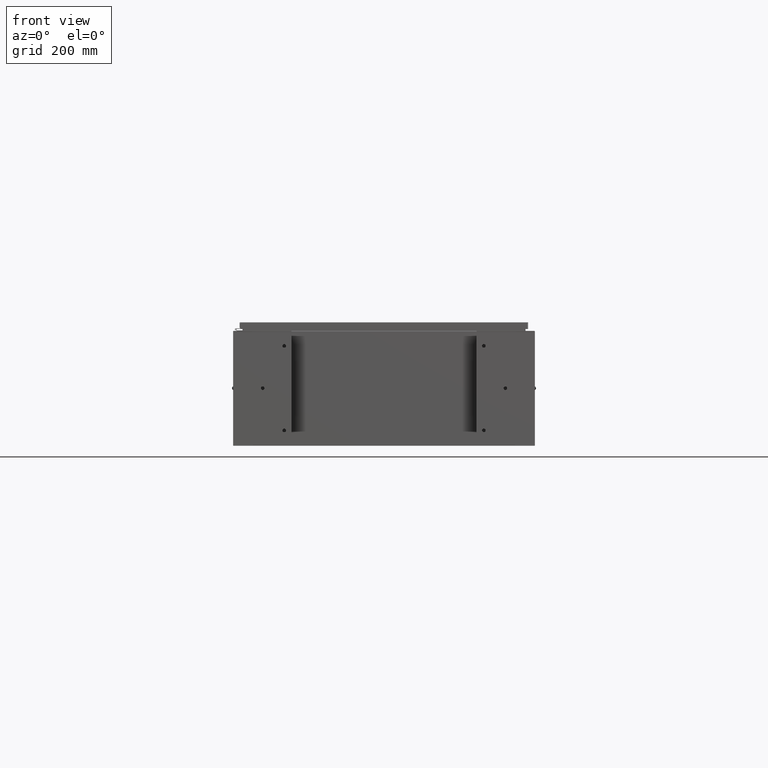
[diagram: clean part render]
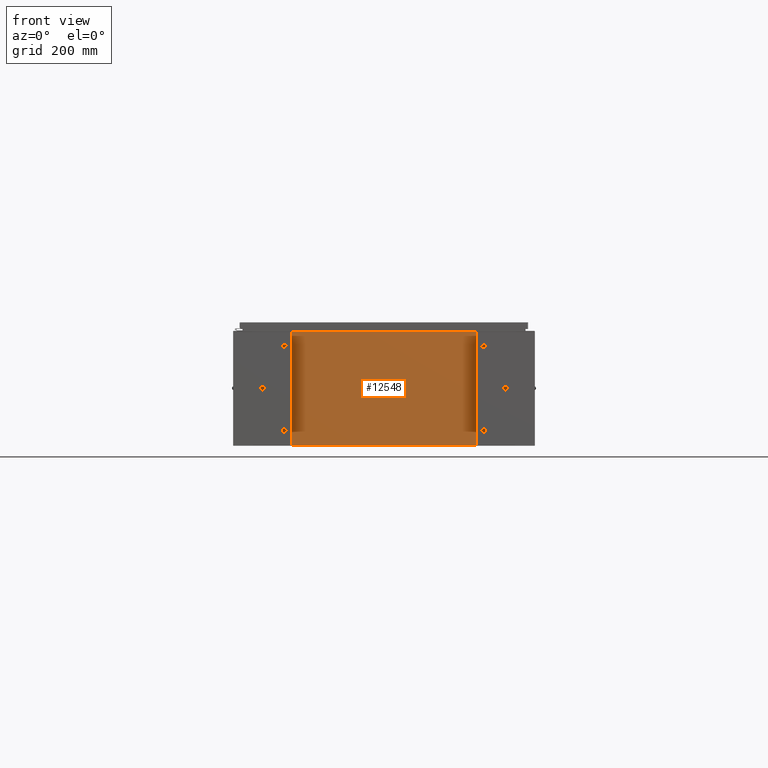
[diagram: same view with one face highlighted and labeled with its STEP entity id]
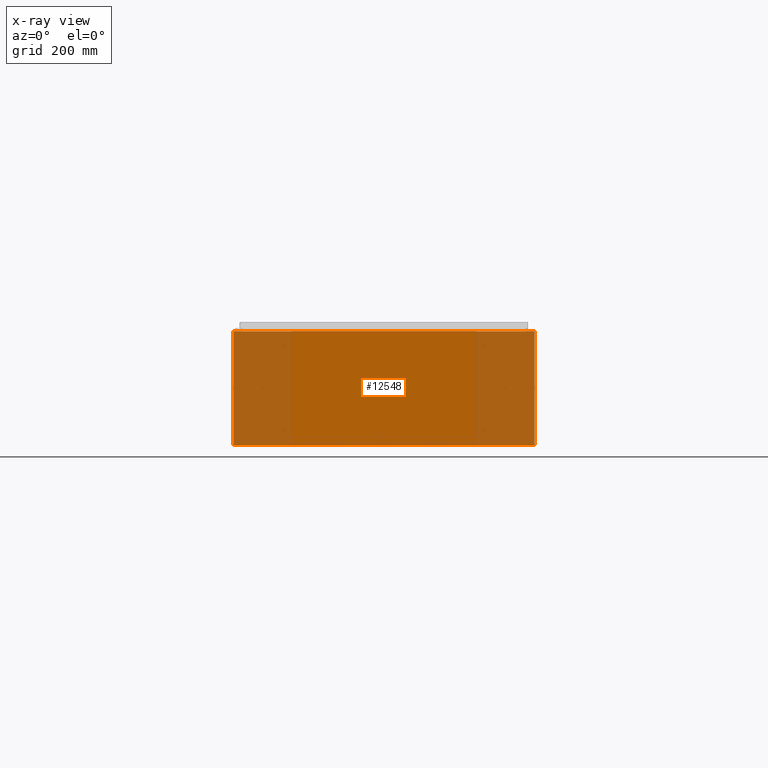
[diagram: x-ray of the same camera — body ghosted, the highlighted face saturated]
A machine part, front view. The second image highlights one B-rep face of the part: STEP entity #12548.
The next image is the same camera in x-ray: the body ghosted, the highlighted face saturated — about 38% of this face is hidden behind the body in this view.
In plain terms, the highlighted planar face has unit normal (-0, 1, -0).
Its self-contained STEP definition (entity closure, byte-faithful):
#486 = VERTEX_POINT ( 'NONE', #44316 ) ;
#908 = EDGE_CURVE ( 'NONE', #27316, #55080, #16920, .T. ) ;
#1716 = CARTESIAN_POINT ( 'NONE',  ( -20.92530000000000400, 0.0000000000000000000, 7.925300000000001800 ) ) ;
#1980 = CARTESIAN_POINT ( 'NONE',  ( -19.63720000000000400, -0.0000000000000000000, 0.0000000000000000000 ) ) ;
#3445 = DIRECTION ( 'NONE',  ( 0.0000000000000000000, 0.0000000000000000000, 1.000000000000000000 ) ) ;
#3631 = VECTOR ( 'NONE', #14404, 39.37007874015748100 ) ;
#4029 = ORIENTED_EDGE ( 'NONE', *, *, #34767, .F. ) ;
#5207 = CARTESIAN_POINT ( 'NONE',  ( 19.65587500000000500, 0.0000000000000000000, 7.874950000000001900 ) ) ;
#5981 = VERTEX_POINT ( 'NONE', #47097 ) ;
#6625 = ORIENTED_EDGE ( 'NONE', *, *, #908, .F. ) ;
#10515 = VERTEX_POINT ( 'NONE', #37493 ) ;
#10577 = CARTESIAN_POINT ( 'NONE',  ( -20.92530000000000400, 0.0000000000000000000, 7.925300000000001800 ) ) ;
#12548 = ADVANCED_FACE ( 'NONE', ( #39810 ), #17777, .F. ) ;
#13855 = CARTESIAN_POINT ( 'NONE',  ( -19.65587500000000500, 0.0000000000000000000, 7.874950000000001900 ) ) ;
#14272 = DIRECTION ( 'NONE',  ( -0.0000000000000000000, -0.0000000000000000000, 1.000000000000000000 ) ) ;
#14283 = CARTESIAN_POINT ( 'NONE',  ( -19.63720000000000400, -0.0000000000000000000, 7.874950000000001900 ) ) ;
#14404 = DIRECTION ( 'NONE',  ( -1.000000000000000000, -0.0000000000000000000, -0.0000000000000000000 ) ) ;
#14795 = ORIENTED_EDGE ( 'NONE', *, *, #54468, .T. ) ;
#14874 = CARTESIAN_POINT ( 'NONE',  ( 19.67455000000034500, 0.0000000000000000000, 8.539881619662225600E-013 ) ) ;
#15259 = EDGE_CURVE ( 'NONE', #59987, #10515, #66054, .T. ) ;
#16067 = ORIENTED_EDGE ( 'NONE', *, *, #66864, .F. ) ;
#16421 = VECTOR ( 'NONE', #47747, 39.37007874015748100 ) ;
#16920 = CIRCLE ( 'NONE', #61951, 0.01867499999999949400 ) ;
#16942 = VECTOR ( 'NONE', #70055, 39.37007874015748100 ) ;
#17533 = VERTEX_POINT ( 'NONE', #38111 ) ;
#17669 = EDGE_CURVE ( 'NONE', #5981, #70222, #18638, .T. ) ;
#17760 = ORIENTED_EDGE ( 'NONE', *, *, #50952, .T. ) ;
#17777 = PLANE ( 'NONE',  #46016 ) ;
#18638 = LINE ( 'NONE', #50153, #16942 ) ;
#18989 = CARTESIAN_POINT ( 'NONE',  ( 19.63720000000000400, 0.0000000000000000000, 7.874950000000001900 ) ) ;
#19323 = DIRECTION ( 'NONE',  ( 0.0000000000000000000, 0.0000000000000000000, -1.000000000000000000 ) ) ;
#19700 = VECTOR ( 'NONE', #3445, 39.37007874015748100 ) ;
#19897 = LINE ( 'NONE', #41637, #3631 ) ;
#20248 = CARTESIAN_POINT ( 'NONE',  ( -19.67455000000000400, 0.0000000000000000000, 7.874950000000001900 ) ) ;
#22291 = ORIENTED_EDGE ( 'NONE', *, *, #70606, .F. ) ;
#23552 = DIRECTION ( 'NONE',  ( 0.0000000000000000000, -1.000000000000000000, 0.0000000000000000000 ) ) ;
#23997 = EDGE_CURVE ( 'NONE', #39673, #17533, #40269, .T. ) ;
#24184 = VERTEX_POINT ( 'NONE', #14283 ) ;
#24862 = CARTESIAN_POINT ( 'NONE',  ( 19.63720000000000400, 0.0000000000000000000, 7.912300000000001900 ) ) ;
#25652 = VECTOR ( 'NONE', #53927, 39.37007874015748100 ) ;
#26162 = CARTESIAN_POINT ( 'NONE',  ( 19.67455000000000400, 0.0000000000000000000, 7.874950000000001900 ) ) ;
#26261 = DIRECTION ( 'NONE',  ( 0.0000000000000000000, 0.0000000000000000000, -1.000000000000000000 ) ) ;
#27316 = VERTEX_POINT ( 'NONE', #26162 ) ;
#27318 = EDGE_LOOP ( 'NONE', ( #68927, #37035, #4029, #48041, #16067, #6625, #22291, #40270, #14795, #50178, #17760, #68169 ) ) ;
#28715 = DIRECTION ( 'NONE',  ( 0.0000000000000000000, 0.0000000000000000000, 1.000000000000000000 ) ) ;
#29892 = DIRECTION ( 'NONE',  ( 1.000000000000000000, 0.0000000000000000000, -2.611047864225854000E-017 ) ) ;
#30048 = LINE ( 'NONE', #1980, #70431 ) ;
#30115 = CIRCLE ( 'NONE', #57921, 0.01867499999999949400 ) ;
#30511 = CARTESIAN_POINT ( 'NONE',  ( -20.92530000000000400, 0.0000000000000000000, 7.925300000000001800 ) ) ;
#30934 = LINE ( 'NONE', #14874, #16421 ) ;
#31259 = LINE ( 'NONE', #34454, #44045 ) ;
#32115 = VECTOR ( 'NONE', #14272, 39.37007874015748100 ) ;
#33017 = VERTEX_POINT ( 'NONE', #70357 ) ;
#33479 = EDGE_CURVE ( 'NONE', #33017, #486, #19897, .T. ) ;
#33866 = LINE ( 'NONE', #30511, #32115 ) ;
#34256 = EDGE_CURVE ( 'NONE', #24184, #59987, #30115, .T. ) ;
#34454 = CARTESIAN_POINT ( 'NONE',  ( 20.92530000000000400, 0.0000000000000000000, 7.925300000000000900 ) ) ;
#34767 = EDGE_CURVE ( 'NONE', #5981, #24184, #30048, .T. ) ;
#34857 = DIRECTION ( 'NONE',  ( 0.0000000000000000000, 0.0000000000000000000, -1.000000000000000000 ) ) ;
#35209 = LINE ( 'NONE', #57074, #47908 ) ;
#37035 = ORIENTED_EDGE ( 'NONE', *, *, #34256, .F. ) ;
#37493 = CARTESIAN_POINT ( 'NONE',  ( -19.67455000000000400, 0.0000000000000000000, 7.925300000000001800 ) ) ;
#38111 = CARTESIAN_POINT ( 'NONE',  ( 20.92530000000000400, 0.0000000000000000000, 7.925300000000000900 ) ) ;
#39673 = VERTEX_POINT ( 'NONE', #45332 ) ;
#39810 = FACE_OUTER_BOUND ( 'NONE', #27318, .T. ) ;
#40269 = LINE ( 'NONE', #10577, #25652 ) ;
#40270 = ORIENTED_EDGE ( 'NONE', *, *, #23997, .T. ) ;
#41637 = CARTESIAN_POINT ( 'NONE',  ( -20.92530000000000400, 0.0000000000000000000, -7.925299999999997300 ) ) ;
#43846 = DIRECTION ( 'NONE',  ( 0.0000000000000000000, -0.0000000000000000000, -1.000000000000000000 ) ) ;
#44045 = VECTOR ( 'NONE', #50816, 39.37007874015748100 ) ;
#44316 = CARTESIAN_POINT ( 'NONE',  ( -20.92530000000000400, 0.0000000000000000000, -7.925299999999997300 ) ) ;
#45332 = CARTESIAN_POINT ( 'NONE',  ( 19.67454999999998200, 0.0000000000000000000, 7.925300000000000900 ) ) ;
#46016 = AXIS2_PLACEMENT_3D ( 'NONE', #61077, #23552, #43846 ) ;
#46715 = DIRECTION ( 'NONE',  ( -0.0000000000000000000, 1.000000000000000000, -0.0000000000000000000 ) ) ;
#47097 = CARTESIAN_POINT ( 'NONE',  ( -19.63720000000000400, -7.171100983368691200E-016, 7.912300000000001900 ) ) ;
#47747 = DIRECTION ( 'NONE',  ( 4.340572780400098900E-014, 0.0000000000000000000, -1.000000000000000000 ) ) ;
#47908 = VECTOR ( 'NONE', #29892, 39.37007874015748100 ) ;
#48041 = ORIENTED_EDGE ( 'NONE', *, *, #17669, .T. ) ;
#48751 = LINE ( 'NONE', #69193, #19700 ) ;
#50153 = CARTESIAN_POINT ( 'NONE',  ( -19.63720000000000400, -7.171100983368691200E-016, 7.912300000000001900 ) ) ;
#50178 = ORIENTED_EDGE ( 'NONE', *, *, #33479, .T. ) ;
#50816 = DIRECTION ( 'NONE',  ( 0.0000000000000000000, 0.0000000000000000000, -1.000000000000000000 ) ) ;
#50952 = EDGE_CURVE ( 'NONE', #486, #51840, #33866, .T. ) ;
#51840 = VERTEX_POINT ( 'NONE', #1716 ) ;
#51983 = DIRECTION ( 'NONE',  ( -0.0000000000000000000, 1.000000000000000000, -0.0000000000000000000 ) ) ;
#53110 = CARTESIAN_POINT ( 'NONE',  ( -19.67455000000000400, -0.0000000000000000000, 0.0000000000000000000 ) ) ;
#53927 = DIRECTION ( 'NONE',  ( 1.000000000000000000, 0.0000000000000000000, -2.611047864225854000E-017 ) ) ;
#54468 = EDGE_CURVE ( 'NONE', #17533, #33017, #31259, .T. ) ;
#55080 = VERTEX_POINT ( 'NONE', #18989 ) ;
#57074 = CARTESIAN_POINT ( 'NONE',  ( -20.92530000000000400, 0.0000000000000000000, 7.925300000000001800 ) ) ;
#57698 = EDGE_CURVE ( 'NONE', #51840, #10515, #35209, .T. ) ;
#57921 = AXIS2_PLACEMENT_3D ( 'NONE', #13855, #51983, #19323 ) ;
#59987 = VERTEX_POINT ( 'NONE', #20248 ) ;
#61077 = CARTESIAN_POINT ( 'NONE',  ( 0.0000000000000000000, 0.0000000000000000000, 0.0000000000000000000 ) ) ;
#61951 = AXIS2_PLACEMENT_3D ( 'NONE', #5207, #46715, #26261 ) ;
#64257 = VECTOR ( 'NONE', #28715, 39.37007874015748100 ) ;
#66054 = LINE ( 'NONE', #53110, #64257 ) ;
#66864 = EDGE_CURVE ( 'NONE', #55080, #70222, #48751, .T. ) ;
#68169 = ORIENTED_EDGE ( 'NONE', *, *, #57698, .T. ) ;
#68927 = ORIENTED_EDGE ( 'NONE', *, *, #15259, .F. ) ;
#69193 = CARTESIAN_POINT ( 'NONE',  ( 19.63720000000000400, 0.0000000000000000000, 0.0000000000000000000 ) ) ;
#70055 = DIRECTION ( 'NONE',  ( 1.000000000000000000, 0.0000000000000000000, 0.0000000000000000000 ) ) ;
#70222 = VERTEX_POINT ( 'NONE', #24862 ) ;
#70357 = CARTESIAN_POINT ( 'NONE',  ( 20.92530000000000400, 0.0000000000000000000, -7.925299999999997300 ) ) ;
#70431 = VECTOR ( 'NONE', #34857, 39.37007874015748100 ) ;
#70606 = EDGE_CURVE ( 'NONE', #39673, #27316, #30934, .T. ) ;